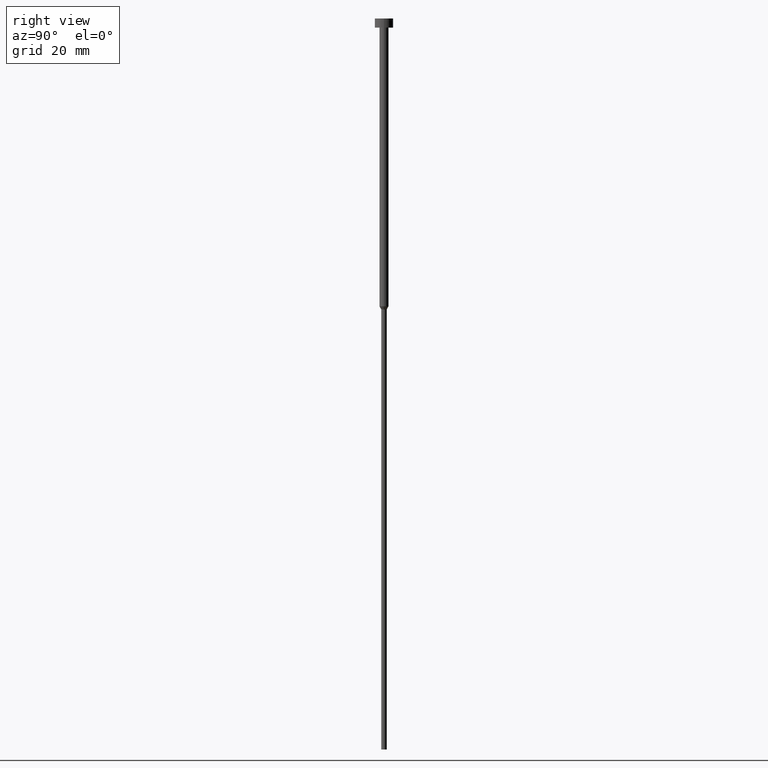
[diagram: clean part render]
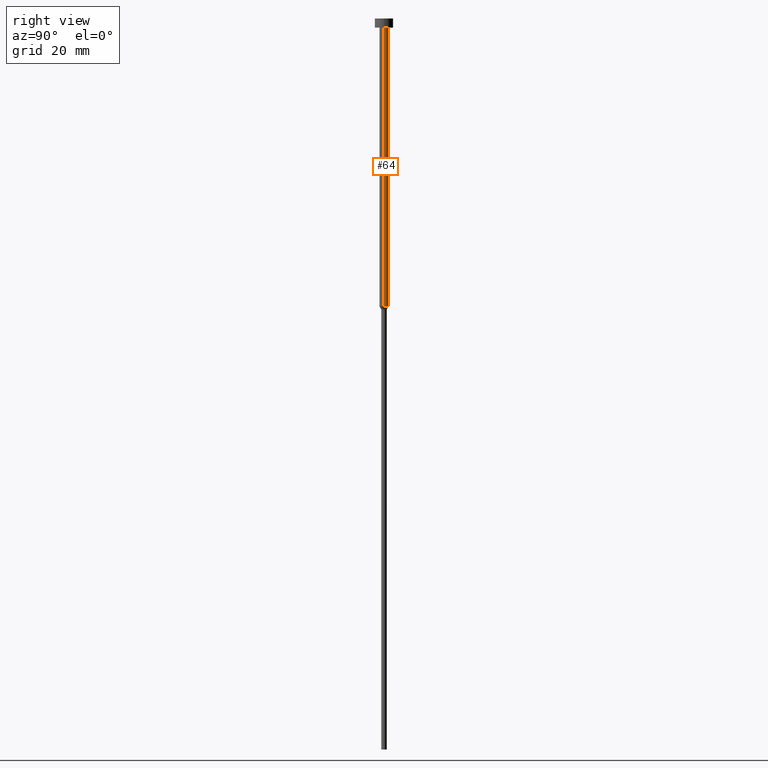
[diagram: same view with one face highlighted and labeled with its STEP entity id]
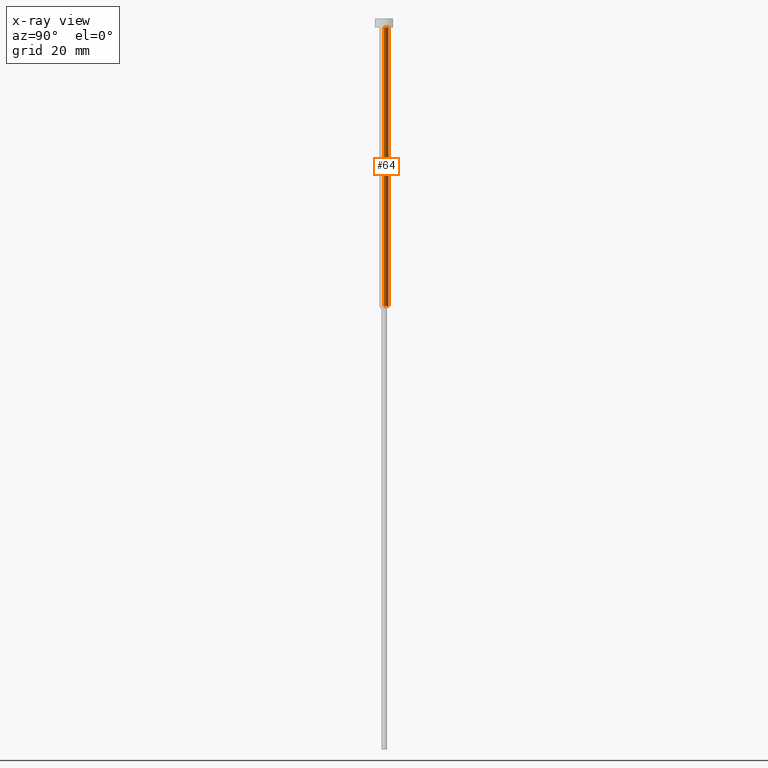
[diagram: x-ray of the same camera — body ghosted, the highlighted face saturated]
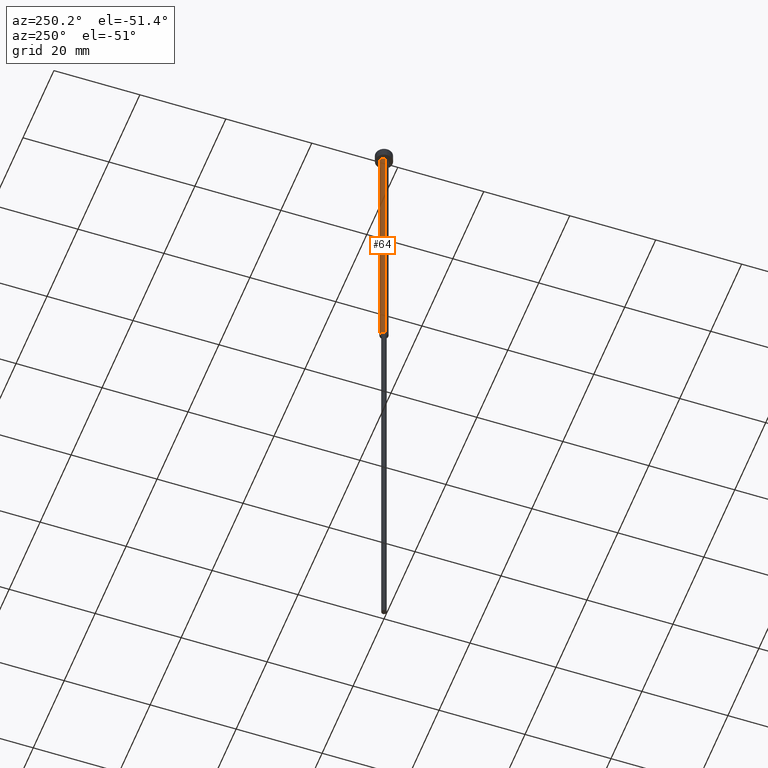
[diagram: same view with one face highlighted and labeled with its STEP entity id]
A machine part, right view. The second image highlights one B-rep face of the part: STEP entity #64.
The next image is the same camera in x-ray: the body ghosted, the highlighted face saturated — about 0% of this face is hidden behind the body in this view.
A second angle (auxiliary view) of the same face is appended — the face is thin or edge-on in the first view.
In plain terms, the highlighted cylindrical surface (edge-blend (fillet) strip) has radius 1 mm, axis along (-0, -0, 1).
Its self-contained STEP definition (entity closure, byte-faithful):
#9 = VERTEX_POINT ( 'NONE', #231 ) ;
#11 = ORIENTED_EDGE ( 'NONE', *, *, #136, .F. ) ;
#24 = CARTESIAN_POINT ( 'NONE',  ( 1.000000000000003553, 0.000000000000000000, -2.000000000000000444 ) ) ;
#25 = ORIENTED_EDGE ( 'NONE', *, *, #215, .F. ) ;
#33 = AXIS2_PLACEMENT_3D ( 'NONE', #345, #129, #49 ) ;
#49 = DIRECTION ( 'NONE',  ( 1.000000000000000000, 0.000000000000000000, 0.000000000000000000 ) ) ;
#55 = VERTEX_POINT ( 'NONE', #268 ) ;
#64 = ADVANCED_FACE ( 'NONE', ( #133 ), #132, .T. ) ;
#69 = DIRECTION ( 'NONE',  ( -0.000000000000000000, -0.000000000000000000, 1.000000000000000000 ) ) ;
#73 = DIRECTION ( 'NONE',  ( -0.000000000000000000, -0.000000000000000000, 1.000000000000000000 ) ) ;
#77 = CARTESIAN_POINT ( 'NONE',  ( -1.000000000000003331, 1.224646799147357151E-16, 0.000000000000000000 ) ) ;
#110 = AXIS2_PLACEMENT_3D ( 'NONE', #322, #73, #162 ) ;
#129 = DIRECTION ( 'NONE',  ( -0.000000000000000000, -0.000000000000000000, 1.000000000000000000 ) ) ;
#131 = VECTOR ( 'NONE', #159, 1000.000000000000000 ) ;
#132 = CYLINDRICAL_SURFACE ( 'NONE', #171, 1.000000000000003331 ) ;
#133 = FACE_OUTER_BOUND ( 'NONE', #283, .T. ) ;
#136 = EDGE_CURVE ( 'NONE', #287, #342, #350, .T. ) ;
#137 = CIRCLE ( 'NONE', #110, 1.000000000000003109 ) ;
#159 = DIRECTION ( 'NONE',  ( -0.000000000000000000, -0.000000000000000000, 1.000000000000000000 ) ) ;
#162 = DIRECTION ( 'NONE',  ( 1.000000000000000000, 0.000000000000000000, 0.000000000000000000 ) ) ;
#163 = LINE ( 'NONE', #77, #242 ) ;
#166 = CIRCLE ( 'NONE', #33, 1.000000000000003553 ) ;
#171 = AXIS2_PLACEMENT_3D ( 'NONE', #293, #69, #295 ) ;
#178 = ORIENTED_EDGE ( 'NONE', *, *, #203, .T. ) ;
#203 = EDGE_CURVE ( 'NONE', #287, #9, #137, .T. ) ;
#215 = EDGE_CURVE ( 'NONE', #342, #55, #166, .T. ) ;
#221 = CARTESIAN_POINT ( 'NONE',  ( 1.000000000000003109, 0.000000000000000000, -63.00000000000000000 ) ) ;
#231 = CARTESIAN_POINT ( 'NONE',  ( -1.000000000000003109, 1.224646799147356905E-16, -63.00000000000000000 ) ) ;
#242 = VECTOR ( 'NONE', #297, 1000.000000000000000 ) ;
#268 = CARTESIAN_POINT ( 'NONE',  ( -1.000000000000003553, 1.224646799147357398E-16, -2.000000000000000444 ) ) ;
#272 = EDGE_CURVE ( 'NONE', #9, #55, #163, .T. ) ;
#283 = EDGE_LOOP ( 'NONE', ( #178, #328, #25, #11 ) ) ;
#287 = VERTEX_POINT ( 'NONE', #221 ) ;
#293 = CARTESIAN_POINT ( 'NONE',  ( 0.000000000000000000, 0.000000000000000000, 0.000000000000000000 ) ) ;
#294 = CARTESIAN_POINT ( 'NONE',  ( 1.000000000000003331, 0.000000000000000000, 0.000000000000000000 ) ) ;
#295 = DIRECTION ( 'NONE',  ( 1.000000000000000000, 0.000000000000000000, 0.000000000000000000 ) ) ;
#297 = DIRECTION ( 'NONE',  ( -0.000000000000000000, -0.000000000000000000, 1.000000000000000000 ) ) ;
#322 = CARTESIAN_POINT ( 'NONE',  ( 0.000000000000000000, 0.000000000000000000, -63.00000000000000000 ) ) ;
#328 = ORIENTED_EDGE ( 'NONE', *, *, #272, .T. ) ;
#342 = VERTEX_POINT ( 'NONE', #24 ) ;
#345 = CARTESIAN_POINT ( 'NONE',  ( 0.000000000000000000, 0.000000000000000000, -2.000000000000000444 ) ) ;
#350 = LINE ( 'NONE', #294, #131 ) ;